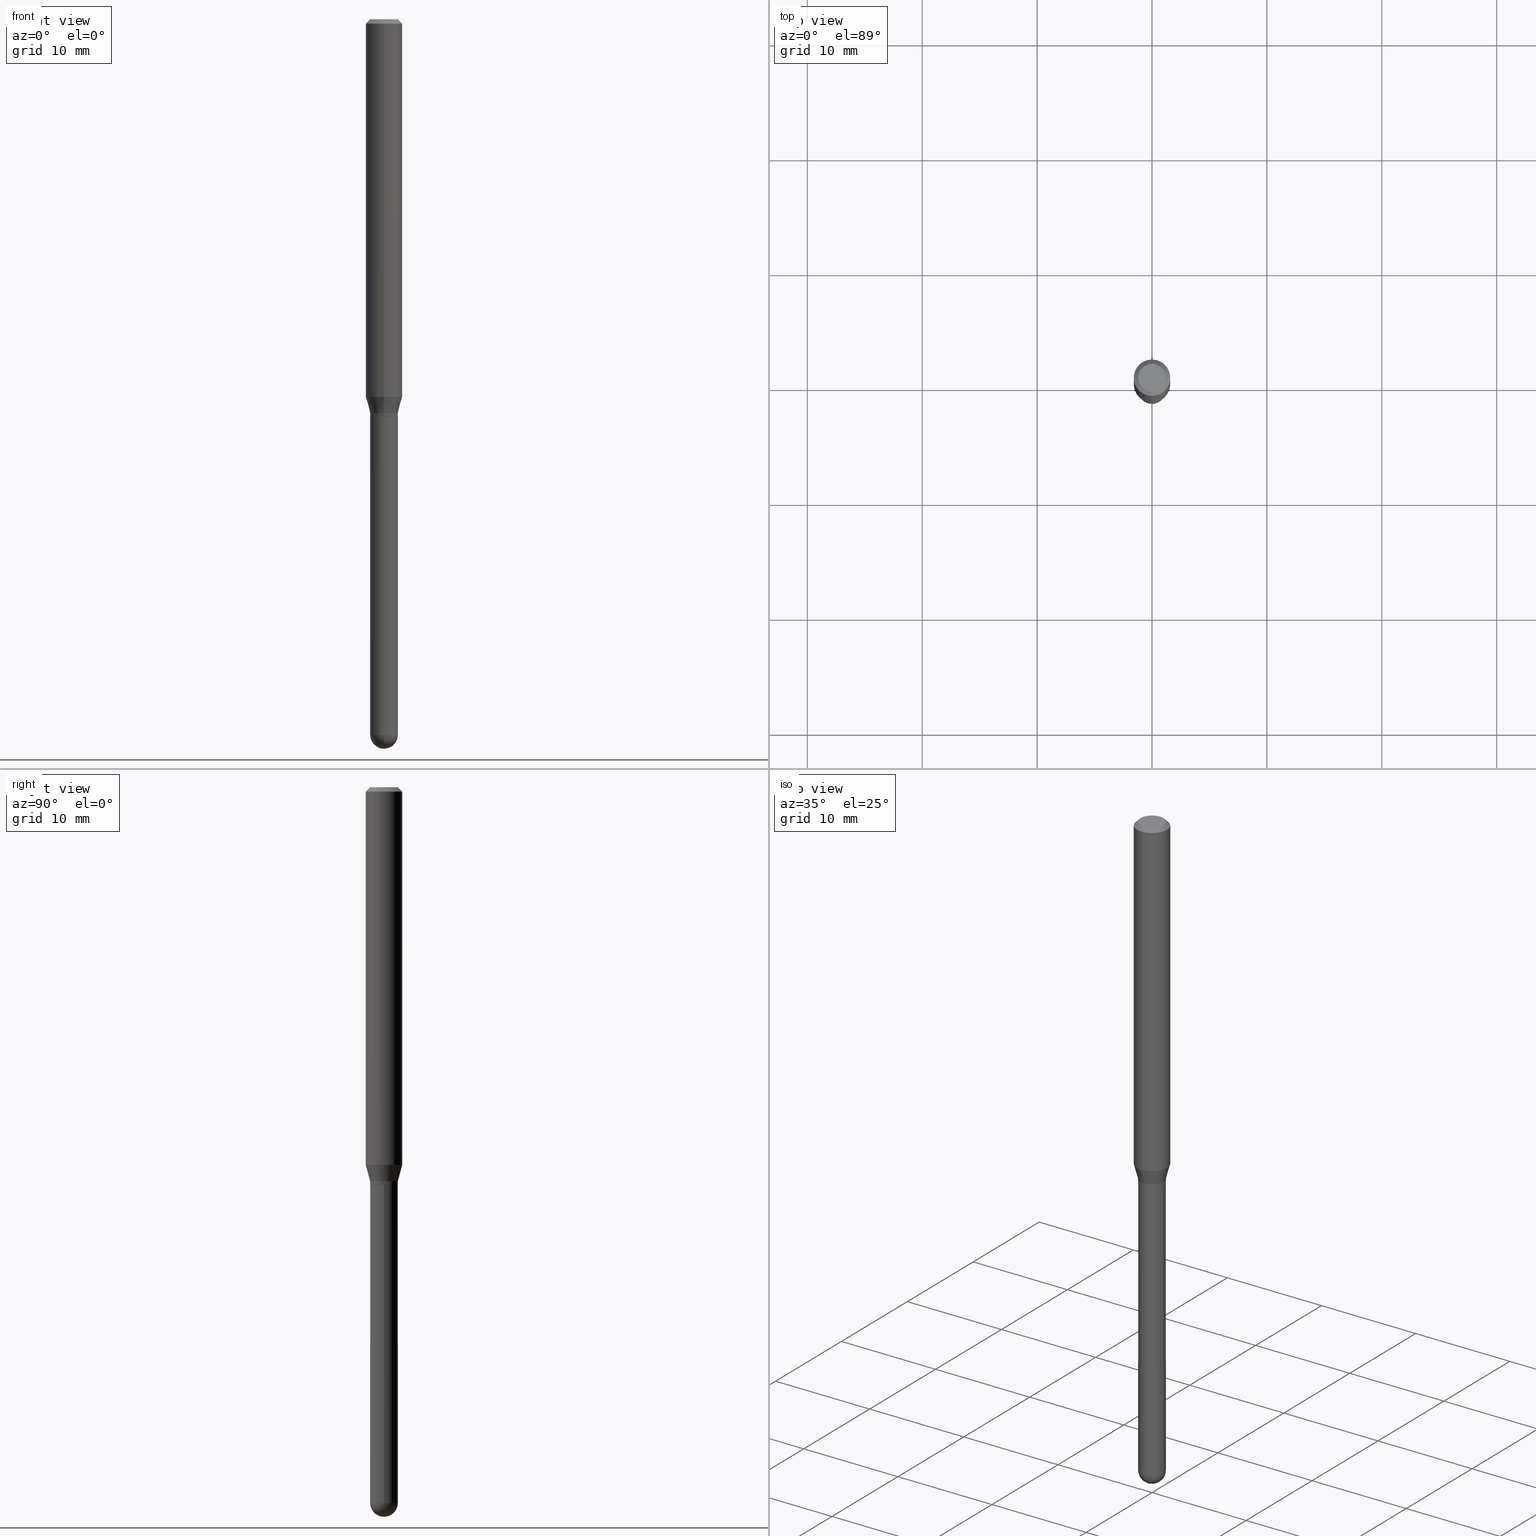
[diagram: canonical four-view strip — front | top / right | iso, engineering-drawing reading convention]
A machine part, canonical four-view strip (front | top / right | iso — engineering-drawing reading convention). The complete STEP part file that produces these views, byte-faithful:
ISO-10303-21;
HEADER;
FILE_DESCRIPTION (( 'STEP AP203' ),
    '1' );
FILE_NAME ('02795.STEP',
    '2024-03-07T21:36:20',
    ( '' ),
    ( '' ),
    'SwSTEP 2.0',
    'SolidWorks 2023',
    '' );
FILE_SCHEMA (( 'CONFIG_CONTROL_DESIGN' ));
ENDSEC;

DATA;
#1 = EDGE_LOOP ( 'NONE', ( #29, #168 ) ) ;
#2 = DIRECTION ( 'NONE',  ( -6.982962677686265922E-15, -1.000000000000000000, 3.491508113108487617E-15 ) ) ;
#3 = ORIENTED_EDGE ( 'NONE', *, *, #325, .T. ) ;
#4 = FACE_OUTER_BOUND ( 'NONE', #156, .T. ) ;
#5 = ORIENTED_EDGE ( 'NONE', *, *, #74, .F. ) ;
#6 = DIRECTION ( 'NONE',  ( -2.445468806185136597E-29, 3.491481338843145583E-15, 1.000000000000000000 ) ) ;
#7 = CARTESIAN_POINT ( 'NONE',  ( -0.04750000000000000749, 3.375077994860476415E-16, -2.336494167871080260E-30 ) ) ;
#8 = AXIS2_PLACEMENT_3D ( 'NONE', #56, #287, #360 ) ;
#9 = ORIENTED_EDGE ( 'NONE', *, *, #450, .T. ) ;
#10 = CARTESIAN_POINT ( 'NONE',  ( 3.668175164723444599E-31, -5.237262169662845786E-17, -0.01500000000000032904 ) ) ;
#11 = CARTESIAN_POINT ( 'NONE',  ( 3.339550858072802203E-16, 0.04699999999999524697, -1.360000000000000764 ) ) ;
#12 = CALENDAR_DATE ( 2024, 7, 3 ) ;
#13 = FACE_OUTER_BOUND ( 'NONE', #165, .T. ) ;
#14 = DIRECTION ( 'NONE',  ( 1.000000000000000000, -6.982962677686280910E-15, 0.000000000000000000 ) ) ;
#15 = APPROVAL_ROLE ( '' ) ;
#16 = CIRCLE ( 'NONE', #436, 0.04699999999999999317 ) ;
#17 = APPROVAL_PERSON_ORGANIZATION ( #322, #298, #15 ) ;
#18 = DIRECTION ( 'NONE',  ( 6.982962677686265922E-15, 1.000000000000000000, -5.751258934030062081E-15 ) ) ;
#19 = FACE_OUTER_BOUND ( 'NONE', #1, .T. ) ;
#20 = CALENDAR_DATE ( 2024, 7, 3 ) ;
#21 = APPLICATION_CONTEXT ( 'configuration controlled 3d designs of mechanical parts and assemblies' ) ;
#22 = DIRECTION ( 'NONE',  ( -1.000000000000000000, 6.982962677686265922E-15, -4.876176775795935793E-29 ) ) ;
#23 = COORDINATED_UNIVERSAL_TIME_OFFSET ( 5, 0, .BEHIND. ) ;
#24 = DIRECTION ( 'NONE',  ( -2.445468806185136597E-29, 3.491481338843145583E-15, 1.000000000000000000 ) ) ;
#25 = VECTOR ( 'NONE', #338, 39.37007874015748143 ) ;
#26 = VECTOR ( 'NONE', #166, 39.37007874015748143 ) ;
#27 = EDGE_CURVE ( 'NONE', #424, #31, #16, .T. ) ;
#28 = CARTESIAN_POINT ( 'NONE',  ( -4.364351673553912750E-16, -0.06250000000000005551, -0.01500000000000011047 ) ) ;
#29 = ORIENTED_EDGE ( 'NONE', *, *, #139, .T. ) ;
#30 = DIRECTION ( 'NONE',  ( 1.000000000000000000, -6.982962677686280910E-15, 0.000000000000000000 ) ) ;
#31 = VERTEX_POINT ( 'NONE', #163 ) ;
#32 = CARTESIAN_POINT ( 'NONE',  ( 3.375077994860819570E-16, 0.04749999999999549027, -1.350000000000000311 ) ) ;
#33 = VERTEX_POINT ( 'NONE', #119 ) ;
#34 = AXIS2_PLACEMENT_3D ( 'NONE', #405, #220, #416 ) ;
#35 = CARTESIAN_POINT ( 'NONE',  ( 3.301357648251027998E-29, -4.713535952696458717E-15, -1.350000000000000089 ) ) ;
#36 = ORIENTED_EDGE ( 'NONE', *, *, #352, .F. ) ;
#37 = VERTEX_POINT ( 'NONE', #274 ) ;
#38 = VERTEX_POINT ( 'NONE', #435 ) ;
#39 = EDGE_CURVE ( 'NONE', #31, #37, #48, .T. ) ;
#40 = CIRCLE ( 'NONE', #260, 0.04749999999999999362 ) ;
#41 = CONICAL_SURFACE ( 'NONE', #437, 0.04750000000000020178, 0.2617993877991497964 ) ;
#42 = ORIENTED_EDGE ( 'NONE', *, *, #291, .F. ) ;
#43 = CC_DESIGN_PERSON_AND_ORGANIZATION_ASSIGNMENT ( #410, #370, ( #281 ) ) ;
#44 = CARTESIAN_POINT ( 'NONE',  ( 0.04750000000000000749, -3.316907271900977082E-16, 2.316183968503069432E-30 ) ) ;
#45 = ADVANCED_FACE ( 'NONE', ( #237 ), #393, .T. ) ;
#46 = ORIENTED_EDGE ( 'NONE', *, *, #160, .F. ) ;
#47 = CARTESIAN_POINT ( 'NONE',  ( 0.000000000000000000, 0.000000000000000000, 0.000000000000000000 ) ) ;
#48 = LINE ( 'NONE', #87, #222 ) ;
#49 = PERSON_AND_ORGANIZATION_ROLE ( 'classification_officer' ) ;
#50 = AXIS2_PLACEMENT_3D ( 'NONE', #101, #62, #67 ) ;
#51 = ORIENTED_EDGE ( 'NONE', *, *, #413, .T. ) ;
#52 = CIRCLE ( 'NONE', #488, 0.04750000000000000749 ) ;
#53 = APPROVAL_STATUS ( 'not_yet_approved' ) ;
#54 = VECTOR ( 'NONE', #407, 39.37007874015748143 ) ;
#55 = FACE_OUTER_BOUND ( 'NONE', #507, .T. ) ;
#56 = CARTESIAN_POINT ( 'NONE',  ( 3.164459487392930643E-29, -4.518078667599064450E-15, -1.294019237886467666 ) ) ;
#57 = APPROVAL_DATE_TIME ( #403, #335 ) ;
#58 = DIRECTION ( 'NONE',  ( -2.445450109815576098E-29, 3.491508113108487617E-15, 1.000000000000000000 ) ) ;
#59 = DIRECTION ( 'NONE',  ( 1.000000000000000000, -6.982962677686266711E-15, 4.876176775795934672E-29 ) ) ;
#60 = COORDINATED_UNIVERSAL_TIME_OFFSET ( 5, 0, .BEHIND. ) ;
#61 = DESIGN_CONTEXT ( 'detailed design', #394, 'design' ) ;
#62 = DIRECTION ( 'NONE',  ( -2.445468806185136597E-29, 3.491481338843145583E-15, 1.000000000000000000 ) ) ;
#63 = AXIS2_PLACEMENT_3D ( 'NONE', #458, #104, #184 ) ;
#64 = CIRCLE ( 'NONE', #490, 0.04749999999999999362 ) ;
#65 = DATE_AND_TIME ( #453, #86 ) ;
#66 = ADVANCED_FACE ( 'NONE', ( #314 ), #333, .T. ) ;
#67 = DIRECTION ( 'NONE',  ( 1.000000000000000000, -6.982962677686280910E-15, 0.000000000000000000 ) ) ;
#68 = APPROVAL_STATUS ( 'not_yet_approved' ) ;
#69 = PERSON ( 'UNSPECIFIED', 'UNSPECIFIED', 'UNSPECIFIED', ('UNSPECIFIED'), ('UNSPECIFIED'), ('UNSPECIFIED') ) ;
#70 = CYLINDRICAL_SURFACE ( 'NONE', #332, 0.06250000000000000000 ) ;
#71 = DIRECTION ( 'NONE',  ( -6.982962677686265922E-15, -1.000000000000000000, 4.370956789862821150E-15 ) ) ;
#72 = APPROVAL_PERSON_ORGANIZATION ( #255, #447, #293 ) ;
#73 = LINE ( 'NONE', #192, #25 ) ;
#74 = EDGE_CURVE ( 'NONE', #347, #78, #356, .T. ) ;
#75 = EDGE_LOOP ( 'NONE', ( #443, #358, #208, #261 ) ) ;
#76 = CARTESIAN_POINT ( 'NONE',  ( 0.000000000000000000, 0.000000000000000000, 0.000000000000000000 ) ) ;
#77 = CYLINDRICAL_SURFACE ( 'NONE', #207, 0.06250000000000000000 ) ;
#78 = VERTEX_POINT ( 'NONE', #289 ) ;
#79 = CIRCLE ( 'NONE', #302, 0.04750000000000000749 ) ;
#80 = ORIENTED_EDGE ( 'NONE', *, *, #346, .F. ) ;
#81 = ADVANCED_FACE ( 'NONE', ( #327 ), #315, .T. ) ;
#82 = ORIENTED_EDGE ( 'NONE', *, *, #383, .F. ) ;
#83 = EDGE_CURVE ( 'NONE', #389, #429, #377, .T. ) ;
#84 = LINE ( 'NONE', #224, #253 ) ;
#85 = VECTOR ( 'NONE', #113, 39.37007874015748143 ) ;
#86 = LOCAL_TIME ( 16, 36, 20.00000000000000000, #23 ) ;
#87 = CARTESIAN_POINT ( 'NONE',  ( -3.281992458512212238E-16, -0.04700000000000473938, -1.360000000000000320 ) ) ;
#88 = SPHERICAL_SURFACE ( 'NONE', #304, 0.04749999999999971606 ) ;
#89 = VERTEX_POINT ( 'NONE', #448 ) ;
#90 = DIRECTION ( 'NONE',  ( 6.982962677686265922E-15, 1.000000000000000000, -3.483106191921935554E-15 ) ) ;
#91 = ORIENTED_EDGE ( 'NONE', *, *, #450, .F. ) ;
#92 = FACE_OUTER_BOUND ( 'NONE', #471, .T. ) ;
#93 = EDGE_CURVE ( 'NONE', #31, #424, #504, .T. ) ;
#94 = CIRCLE ( 'NONE', #367, 0.04750000000000020178 ) ;
#95 = PLANE ( 'NONE',  #158 ) ;
#96 = AXIS2_PLACEMENT_3D ( 'NONE', #276, #395, #359 ) ;
#97 = CARTESIAN_POINT ( 'NONE',  ( 8.024638792496662421E-45, -1.145723289806970711E-30, -3.281456759345559287E-16 ) ) ;
#98 = DIRECTION ( 'NONE',  ( -2.445450109815576098E-29, 3.491508113108487617E-15, 1.000000000000000000 ) ) ;
#99 = ADVANCED_FACE ( 'NONE', ( #248 ), #499, .T. ) ;
#100 = FACE_OUTER_BOUND ( 'NONE', #151, .T. ) ;
#101 = CARTESIAN_POINT ( 'NONE',  ( 5.997512247169047773E-29, -8.562857983512815004E-15, -2.452500000000000124 ) ) ;
#102 = DIRECTION ( 'NONE',  ( 0.000000000000000000, 0.000000000000000000, 1.000000000000000000 ) ) ;
#103 = ADVANCED_FACE ( 'NONE', ( #212 ), #292, .T. ) ;
#104 = DIRECTION ( 'NONE',  ( -1.000000000000000000, 6.982962677686265922E-15, -4.883557194083113462E-29 ) ) ;
#105 = DATE_TIME_ROLE ( 'creation_date' ) ;
#106 = FACE_OUTER_BOUND ( 'NONE', #240, .T. ) ;
#107 = CC_DESIGN_PERSON_AND_ORGANIZATION_ASSIGNMENT ( #127, #49, ( #295 ) ) ;
#108 = PLANE ( 'NONE',  #270 ) ;
#109 = CARTESIAN_POINT ( 'NONE',  ( 3.668175164723444599E-31, -5.237262169662845786E-17, -0.01500000000000032904 ) ) ;
#110 = ORIENTED_EDGE ( 'NONE', *, *, #475, .F. ) ;
#111 = CIRCLE ( 'NONE', #50, 0.04750000000000000749 ) ;
#112 = AXIS2_PLACEMENT_3D ( 'NONE', #169, #323, #241 ) ;
#113 = DIRECTION ( 'NONE',  ( -2.445468806185136877E-29, 3.491481338843145188E-15, 1.000000000000000000 ) ) ;
#114 = ORIENTED_EDGE ( 'NONE', *, *, #291, .T. ) ;
#115 = DIRECTION ( 'NONE',  ( -6.982962677686265922E-15, -1.000000000000000000, 3.483106191921935554E-15 ) ) ;
#116 = VERTEX_POINT ( 'NONE', #364 ) ;
#117 = ORIENTED_EDGE ( 'NONE', *, *, #183, .F. ) ;
#118 = ORIENTED_EDGE ( 'NONE', *, *, #418, .F. ) ;
#119 = CARTESIAN_POINT ( 'NONE',  ( 0.04749999999999999362, -5.080105348016776545E-15, -1.360000000000000320 ) ) ;
#120 = DIRECTION ( 'NONE',  ( -2.445450109815576098E-29, 3.491508113108487617E-15, 1.000000000000000000 ) ) ;
#121 = EDGE_LOOP ( 'NONE', ( #82, #91, #427, #466 ) ) ;
#122 = EDGE_CURVE ( 'NONE', #130, #345, #286, .T. ) ;
#123 = PLANE ( 'NONE',  #112 ) ;
#124 = VECTOR ( 'NONE', #311, 39.37007874015748143 ) ;
#125 = VECTOR ( 'NONE', #58, 39.37007874015748143 ) ;
#126 = DIRECTION ( 'NONE',  ( -2.445450109815576098E-29, 3.491508113108487617E-15, 1.000000000000000000 ) ) ;
#127 = PERSON_AND_ORGANIZATION ( #69, #195 ) ;
#128 = CARTESIAN_POINT ( 'NONE',  ( 0.000000000000000000, 0.000000000000000000, 0.000000000000000000 ) ) ;
#129 =( NAMED_UNIT ( * ) SI_UNIT ( $, .STERADIAN. ) SOLID_ANGLE_UNIT ( ) );
#130 = VERTEX_POINT ( 'NONE', #297 ) ;
#131 = DATE_AND_TIME ( #12, #236 ) ;
#132 = AXIS2_PLACEMENT_3D ( 'NONE', #172, #493, #321 ) ;
#133 = DIRECTION ( 'NONE',  ( -2.445468806185136597E-29, 3.491481338843145583E-15, 1.000000000000000000 ) ) ;
#134 = LOCAL_TIME ( 16, 36, 20.00000000000000000, #146 ) ;
#135 = DIRECTION ( 'NONE',  ( 1.000000000000000000, -6.982962677686261977E-15, 0.000000000000000000 ) ) ;
#136 = PRODUCT_RELATED_PRODUCT_CATEGORY ( 'detail', '', ( #363 ) ) ;
#137 = DIRECTION ( 'NONE',  ( -2.445468806185136877E-29, 3.491481338843145188E-15, 1.000000000000000000 ) ) ;
#138 = MECHANICAL_CONTEXT ( 'NONE', #21, 'mechanical' ) ;
#139 = EDGE_CURVE ( 'NONE', #33, #78, #40, .T. ) ;
#140 = CARTESIAN_POINT ( 'NONE',  ( 3.325812149349185040E-29, -4.748451033827545116E-15, -1.360000000000000542 ) ) ;
#141 = UNCERTAINTY_MEASURE_WITH_UNIT (LENGTH_MEASURE( 1.000000000000000082E-05 ), #484, 'distance_accuracy_value', 'NONE');
#142 = CARTESIAN_POINT ( 'NONE',  ( 0.000000000000000000, 0.000000000000000000, 0.000000000000000000 ) ) ;
#143 = ADVANCED_FACE ( 'NONE', ( #19 ), #95, .F. ) ;
#144 = DIRECTION ( 'NONE',  ( -6.982962677686266711E-15, -1.000000000000000000, 5.812442539711199378E-15 ) ) ;
#145 = LOCAL_TIME ( 16, 36, 20.00000000000000000, #290 ) ;
#146 = COORDINATED_UNIVERSAL_TIME_OFFSET ( 5, 0, .BEHIND. ) ;
#147 = DIRECTION ( 'NONE',  ( 1.000000000000000000, -6.982962677686265922E-15, 4.883557194083112340E-29 ) ) ;
#148 = EDGE_CURVE ( 'NONE', #424, #191, #246, .T. ) ;
#149 = DIRECTION ( 'NONE',  ( 1.000000000000000000, -6.982962677686280910E-15, 0.000000000000000000 ) ) ;
#150 = DIRECTION ( 'NONE',  ( -6.982962677686265922E-15, -1.000000000000000000, 5.751258934030003706E-15 ) ) ;
#151 = EDGE_LOOP ( 'NONE', ( #501, #432, #42, #36 ) ) ;
#152 = CLOSED_SHELL ( 'NONE', ( #45, #81, #457, #229, #477, #66, #368, #398, #376, #481, #201, #372 ) ) ;
#153 = DIRECTION ( 'NONE',  ( -2.445450109815576098E-29, 3.491508113108487617E-15, 1.000000000000000000 ) ) ;
#154 = ORIENTED_EDGE ( 'NONE', *, *, #300, .T. ) ;
#155 = EDGE_CURVE ( 'NONE', #339, #116, #511, .T. ) ;
#156 = EDGE_LOOP ( 'NONE', ( #303, #379, #51, #348 ) ) ;
#157 = ORIENTED_EDGE ( 'NONE', *, *, #275, .F. ) ;
#158 = AXIS2_PLACEMENT_3D ( 'NONE', #210, #216, #22 ) ;
#159 = AXIS2_PLACEMENT_3D ( 'NONE', #426, #263, #30 ) ;
#160 = EDGE_CURVE ( 'NONE', #312, #197, #386, .T. ) ;
#161 = ORIENTED_EDGE ( 'NONE', *, *, #183, .T. ) ;
#162 = DIRECTION ( 'NONE',  ( 2.445450109815575818E-29, -3.491508113108487617E-15, -1.000000000000000000 ) ) ;
#163 = CARTESIAN_POINT ( 'NONE',  ( -3.281992458512212238E-16, -0.04700000000000473938, -1.360000000000000320 ) ) ;
#164 = DIRECTION ( 'NONE',  ( -2.445450109815576098E-29, 3.491508113108487617E-15, 1.000000000000000000 ) ) ;
#165 = EDGE_LOOP ( 'NONE', ( #5, #307, #387, #154, #118 ) ) ;
#166 = DIRECTION ( 'NONE',  ( -1.807323732225326984E-15, -0.2588190451025177419, 0.9659258262890690894 ) ) ;
#167 = CIRCLE ( 'NONE', #420, 0.04749999999999964667 ) ;
#168 = ORIENTED_EDGE ( 'NONE', *, *, #418, .T. ) ;
#169 = CARTESIAN_POINT ( 'NONE',  ( 3.325812149349184480E-29, -4.748451033827544327E-15, -1.360000000000000320 ) ) ;
#170 = ORIENTED_EDGE ( 'NONE', *, *, #300, .F. ) ;
#171 = CYLINDRICAL_SURFACE ( 'NONE', #176, 0.04750000000000000749 ) ;
#172 = CARTESIAN_POINT ( 'NONE',  ( 8.024638792496662421E-45, -1.145723289806970711E-30, -3.281456759345559287E-16 ) ) ;
#173 = DIRECTION ( 'NONE',  ( -1.000000000000000000, 7.105427357601001070E-15, -4.926315508542082329E-29 ) ) ;
#174 = VECTOR ( 'NONE', #273, 39.37007874015748143 ) ;
#175 = CARTESIAN_POINT ( 'NONE',  ( 5.993450207295445537E-29, -8.568675055808764986E-15, -2.452500000000000124 ) ) ;
#176 = AXIS2_PLACEMENT_3D ( 'NONE', #47, #288, #438 ) ;
#177 = DATE_AND_TIME ( #365, #145 ) ;
#178 = EDGE_CURVE ( 'NONE', #345, #347, #52, .T. ) ;
#179 = CARTESIAN_POINT ( 'NONE',  ( 3.840629472727447874E-16, 0.04749999999999999362, -4.939923113072091241E-16 ) ) ;
#180 = CARTESIAN_POINT ( 'NONE',  ( -3.316907271900660552E-16, -0.04750000000000491329, -1.349999999999999867 ) ) ;
#181 = CC_DESIGN_PERSON_AND_ORGANIZATION_ASSIGNMENT ( #213, #251, ( #470 ) ) ;
#182 = APPROVAL_STATUS ( 'not_yet_approved' ) ;
#183 = EDGE_CURVE ( 'NONE', #37, #191, #167, .T. ) ;
#184 = DIRECTION ( 'NONE',  ( 6.982962677686265922E-15, 1.000000000000000000, -5.751258934030062081E-15 ) ) ;
#185 = CIRCLE ( 'NONE', #309, 0.04750000000000020178 ) ;
#186 = LOCAL_TIME ( 16, 36, 20.00000000000000000, #373 ) ;
#187 = CARTESIAN_POINT ( 'NONE',  ( -3.375077994859866034E-16, -0.04750000000000842437, -2.452499999999999680 ) ) ;
#188 = PRODUCT_DEFINITION_SHAPE ( 'NONE', 'NONE',  #281 ) ;
#189 = ORIENTED_EDGE ( 'NONE', *, *, #160, .T. ) ;
#190 = DIRECTION ( 'NONE',  ( -2.445450109815576098E-29, 3.491508113108487617E-15, 1.000000000000000000 ) ) ;
#191 = VERTEX_POINT ( 'NONE', #256 ) ;
#192 = CARTESIAN_POINT ( 'NONE',  ( 3.375077994860469513E-16, 0.04749999999999991729, -1.658466353726528749E-16 ) ) ;
#193 = ORIENTED_EDGE ( 'NONE', *, *, #178, .F. ) ;
#194 = AXIS2_PLACEMENT_3D ( 'NONE', #375, #98, #454 ) ;
#195 = ORGANIZATION ( 'UNSPECIFIED', 'UNSPECIFIED', '' ) ;
#196 = CARTESIAN_POINT ( 'NONE',  ( 3.668175164723444599E-31, -5.237262169662845786E-17, -0.01500000000000032904 ) ) ;
#197 = VERTEX_POINT ( 'NONE', #179 ) ;
#198 = EDGE_LOOP ( 'NONE', ( #157, #503, #310, #397 ) ) ;
#199 = EDGE_CURVE ( 'NONE', #347, #396, #111, .T. ) ;
#200 = VERTEX_POINT ( 'NONE', #180 ) ;
#201 = ADVANCED_FACE ( 'NONE', ( #371 ), #428, .T. ) ;
#202 = EDGE_LOOP ( 'NONE', ( #46, #308, #441, #80 ) ) ;
#203 = FACE_OUTER_BOUND ( 'NONE', #280, .T. ) ;
#204 = DIRECTION ( 'NONE',  ( -2.445450109815576098E-29, 3.491508113108487617E-15, 1.000000000000000000 ) ) ;
#205 = DIRECTION ( 'NONE',  ( -6.982962677686265922E-15, -1.000000000000000000, 5.751258934030003706E-15 ) ) ;
#206 = DATE_TIME_ROLE ( 'classification_date' ) ;
#207 = AXIS2_PLACEMENT_3D ( 'NONE', #228, #502, #392 ) ;
#208 = ORIENTED_EDGE ( 'NONE', *, *, #489, .T. ) ;
#209 = CARTESIAN_POINT ( 'NONE',  ( -4.364351673553916201E-16, -0.06250000000000000000, 2.182192570692804761E-16 ) ) ;
#210 = CARTESIAN_POINT ( 'NONE',  ( 3.316907271901308404E-16, 0.04749999999999524741, -1.360000000000000542 ) ) ;
#211 = CARTESIAN_POINT ( 'NONE',  ( 3.301357648251027998E-29, -4.713535952696458717E-15, -1.350000000000000089 ) ) ;
#212 = FACE_OUTER_BOUND ( 'NONE', #320, .T. ) ;
#213 = PERSON_AND_ORGANIZATION ( #69, #195 ) ;
#214 = LINE ( 'NONE', #355, #54 ) ;
#215 = VECTOR ( 'NONE', #137, 39.37007874015748143 ) ;
#216 = DIRECTION ( 'NONE',  ( 2.438088387897960049E-29, -3.491481338843145188E-15, -1.000000000000000000 ) ) ;
#217 = APPROVAL_DATE_TIME ( #177, #298 ) ;
#218 = PERSON_AND_ORGANIZATION ( #69, #195 ) ;
#219 = DIRECTION ( 'NONE',  ( -2.445450109815576098E-29, 3.491508113108487617E-15, 1.000000000000000000 ) ) ;
#220 = DIRECTION ( 'NONE',  ( -2.445450109815576098E-29, 3.491508113108487617E-15, 1.000000000000000000 ) ) ;
#221 = CARTESIAN_POINT ( 'NONE',  ( 3.301357648251027998E-29, -4.713535952696458717E-15, -1.350000000000000089 ) ) ;
#222 = VECTOR ( 'NONE', #482, 39.37007874015748143 ) ;
#223 = CONICAL_SURFACE ( 'NONE', #480, 0.06250000000000000000, 0.7853981633974483900 ) ;
#224 = CARTESIAN_POINT ( 'NONE',  ( 4.364351673553919652E-16, 0.06249999999999995143, -0.01500000000000054588 ) ) ;
#225 = ORIENTED_EDGE ( 'NONE', *, *, #139, .F. ) ;
#226 = DIRECTION ( 'NONE',  ( 4.937700262164548042E-15, 0.7071067811865451302, -0.7071067811865499042 ) ) ;
#227 = ORIENTED_EDGE ( 'NONE', *, *, #27, .T. ) ;
#228 = CARTESIAN_POINT ( 'NONE',  ( 0.000000000000000000, 0.000000000000000000, 0.000000000000000000 ) ) ;
#229 = ADVANCED_FACE ( 'NONE', ( #106 ), #70, .T. ) ;
#230 = EDGE_LOOP ( 'NONE', ( #161, #381, #337, #439 ) ) ;
#231 = AXIS2_PLACEMENT_3D ( 'NONE', #478, #126, #205 ) ;
#232 = ORIENTED_EDGE ( 'NONE', *, *, #199, .F. ) ;
#233 = EDGE_LOOP ( 'NONE', ( #468, #227, #278, #110 ) ) ;
#234 = AXIS2_PLACEMENT_3D ( 'NONE', #330, #495, #144 ) ;
#235 = LINE ( 'NONE', #385, #124 ) ;
#236 = LOCAL_TIME ( 16, 36, 20.00000000000000000, #60 ) ;
#237 = FACE_OUTER_BOUND ( 'NONE', #230, .T. ) ;
#238 = CC_DESIGN_DATE_AND_TIME_ASSIGNMENT ( #65, #105, ( #281 ) ) ;
#239 = CARTESIAN_POINT ( 'NONE',  ( 5.993450207295445537E-29, -8.568675055808764986E-15, -2.452500000000000124 ) ) ;
#240 = EDGE_LOOP ( 'NONE', ( #306, #272, #510, #351 ) ) ;
#241 = DIRECTION ( 'NONE',  ( -6.982962677686265922E-15, -1.000000000000000000, 3.491508113108487617E-15 ) ) ;
#242 = EDGE_LOOP ( 'NONE', ( #384, #271, #117, #268 ) ) ;
#243 = LINE ( 'NONE', #209, #125 ) ;
#244 = CIRCLE ( 'NONE', #445, 0.06250000000000000000 ) ;
#245 = CC_DESIGN_SECURITY_CLASSIFICATION ( #295, ( #470 ) ) ;
#246 = LINE ( 'NONE', #11, #341 ) ;
#247 = DIRECTION ( 'NONE',  ( -6.982962677686266711E-15, -1.000000000000000000, 3.491508113108487617E-15 ) ) ;
#248 = FACE_OUTER_BOUND ( 'NONE', #264, .T. ) ;
#249 = CARTESIAN_POINT ( 'NONE',  ( 5.993450207295445537E-29, -8.568675055808764986E-15, -2.452500000000000124 ) ) ;
#250 = CARTESIAN_POINT ( 'NONE',  ( 0.000000000000000000, 0.000000000000000000, 0.000000000000000000 ) ) ;
#251 = PERSON_AND_ORGANIZATION_ROLE ( 'design_supplier' ) ;
#252 = EDGE_CURVE ( 'NONE', #116, #339, #244, .T. ) ;
#253 = VECTOR ( 'NONE', #226, 39.37007874015748143 ) ;
#254 = DIRECTION ( 'NONE',  ( -2.445450109815576098E-29, 3.491508113108487617E-15, 1.000000000000000000 ) ) ;
#255 = PERSON_AND_ORGANIZATION ( #69, #195 ) ;
#256 = CARTESIAN_POINT ( 'NONE',  ( 3.375077994860790481E-16, 0.04749999999999501149, -1.359500000000000597 ) ) ;
#257 = DIMENSIONAL_EXPONENTS ( 1.000000000000000000, 0.000000000000000000, 0.000000000000000000, 0.000000000000000000, 0.000000000000000000, 0.000000000000000000, 0.000000000000000000 ) ;
#258 = CARTESIAN_POINT ( 'NONE',  ( -4.287811248607203282E-16, -0.06250000000000005551, -0.01500000000000011047 ) ) ;
#259 = DIRECTION ( 'NONE',  ( -6.982962677686265922E-15, -1.000000000000000000, 3.491508113108487617E-15 ) ) ;
#260 = AXIS2_PLACEMENT_3D ( 'NONE', #294, #133, #408 ) ;
#261 = ORIENTED_EDGE ( 'NONE', *, *, #328, .F. ) ;
#262 = CONICAL_SURFACE ( 'NONE', #512, 0.06250000000000000000, 0.7853981633974483900 ) ;
#263 = DIRECTION ( 'NONE',  ( -2.445468806185136597E-29, 3.491481338843145583E-15, 1.000000000000000000 ) ) ;
#264 = EDGE_LOOP ( 'NONE', ( #390, #267, #225, #170, #114 ) ) ;
#265 = EDGE_CURVE ( 'NONE', #38, #200, #185, .T. ) ;
#266 = CARTESIAN_POINT ( 'NONE',  ( 3.316907271901566262E-16, 0.04749999999999129918, -2.452500000000000568 ) ) ;
#267 = ORIENTED_EDGE ( 'NONE', *, *, #74, .T. ) ;
#268 = ORIENTED_EDGE ( 'NONE', *, *, #39, .F. ) ;
#269 = AXIS2_PLACEMENT_3D ( 'NONE', #175, #147, #369 ) ;
#270 = AXIS2_PLACEMENT_3D ( 'NONE', #461, #162, #473 ) ;
#271 = ORIENTED_EDGE ( 'NONE', *, *, #148, .T. ) ;
#272 = ORIENTED_EDGE ( 'NONE', *, *, #283, .T. ) ;
#273 = DIRECTION ( 'NONE',  ( 1.839019923739597160E-15, 0.2588190451025245142, 0.9659258262890673130 ) ) ;
#274 = CARTESIAN_POINT ( 'NONE',  ( -3.316907271900611741E-16, -0.04750000000000428185, -1.359500000000000153 ) ) ;
#275 = EDGE_CURVE ( 'NONE', #38, #116, #380, .T. ) ;
#276 = CARTESIAN_POINT ( 'NONE',  ( 3.324589424294276487E-29, -4.746705279770989968E-15, -1.359500000000000375 ) ) ;
#277 = AXIS2_PLACEMENT_3D ( 'NONE', #97, #476, #247 ) ;
#278 = ORIENTED_EDGE ( 'NONE', *, *, #39, .T. ) ;
#279 = DIRECTION ( 'NONE',  ( -7.105427357601001070E-15, -1.000000000000000000, 0.000000000000000000 ) ) ;
#280 = EDGE_LOOP ( 'NONE', ( #9, #189 ) ) ;
#281 = PRODUCT_DEFINITION ( 'UNKNOWN', '', #470, #61 ) ;
#282 = CC_DESIGN_DATE_AND_TIME_ASSIGNMENT ( #131, #206, ( #295 ) ) ;
#283 = EDGE_CURVE ( 'NONE', #116, #429, #235, .T. ) ;
#284 = ORIENTED_EDGE ( 'NONE', *, *, #425, .F. ) ;
#285 =( NAMED_UNIT ( * ) PLANE_ANGLE_UNIT ( ) SI_UNIT ( $, .RADIAN. ) );
#286 = CIRCLE ( 'NONE', #269, 0.04749999999999971606 ) ;
#287 = DIRECTION ( 'NONE',  ( -2.445450109815576098E-29, 3.491508113108487617E-15, 1.000000000000000000 ) ) ;
#288 = DIRECTION ( 'NONE',  ( -2.445468806185136597E-29, 3.491481338843145583E-15, 1.000000000000000000 ) ) ;
#289 = CARTESIAN_POINT ( 'NONE',  ( -0.04749999999999999362, -6.318128502683699525E-15, -1.360000000000000320 ) ) ;
#290 = COORDINATED_UNIVERSAL_TIME_OFFSET ( 5, 0, .BEHIND. ) ;
#291 = EDGE_CURVE ( 'NONE', #89, #345, #79, .T. ) ;
#292 = SPHERICAL_SURFACE ( 'NONE', #63, 0.04749999999999971606 ) ;
#293 = APPROVAL_ROLE ( '' ) ;
#294 = CARTESIAN_POINT ( 'NONE',  ( 3.325837576411786624E-29, -4.748414620826679034E-15, -1.360000000000000320 ) ) ;
#295 = SECURITY_CLASSIFICATION ( '', '', #406 ) ;
#296 = PERSON_AND_ORGANIZATION ( #69, #195 ) ;
#297 = CARTESIAN_POINT ( 'NONE',  ( 6.111640995526039814E-29, -8.731611883255838356E-15, -2.500000000000000000 ) ) ;
#298 = APPROVAL ( #53, 'UNSPECIFIED' ) ;
#299 = FACE_OUTER_BOUND ( 'NONE', #121, .T. ) ;
#300 = EDGE_CURVE ( 'NONE', #89, #33, #460, .T. ) ;
#301 = LINE ( 'NONE', #258, #456 ) ;
#302 = AXIS2_PLACEMENT_3D ( 'NONE', #422, #467, #149 ) ;
#303 = ORIENTED_EDGE ( 'NONE', *, *, #316, .F. ) ;
#304 = AXIS2_PLACEMENT_3D ( 'NONE', #249, #362, #18 ) ;
#305 = CARTESIAN_POINT ( 'NONE',  ( -4.364351673553597698E-16, -0.06250000000000448253, -1.294019237886467444 ) ) ;
#306 = ORIENTED_EDGE ( 'NONE', *, *, #155, .T. ) ;
#307 = ORIENTED_EDGE ( 'NONE', *, *, #199, .T. ) ;
#308 = ORIENTED_EDGE ( 'NONE', *, *, #383, .T. ) ;
#309 = AXIS2_PLACEMENT_3D ( 'NONE', #221, #506, #344 ) ;
#310 = ORIENTED_EDGE ( 'NONE', *, *, #425, .T. ) ;
#311 = DIRECTION ( 'NONE',  ( -2.445450109815576098E-29, 3.491508113108487617E-15, 1.000000000000000000 ) ) ;
#312 = VERTEX_POINT ( 'NONE', #340 ) ;
#313 = CARTESIAN_POINT ( 'NONE',  ( 4.440892098500944664E-16, 0.06249999999999995143, -0.01500000000000054588 ) ) ;
#314 = FACE_OUTER_BOUND ( 'NONE', #198, .T. ) ;
#315 = CONICAL_SURFACE ( 'NONE', #463, 0.04699999999999999317, 0.7853981633969275844 ) ;
#316 = EDGE_CURVE ( 'NONE', #191, #38, #73, .T. ) ;
#317 = FACE_OUTER_BOUND ( 'NONE', #202, .T. ) ;
#318 = DIRECTION ( 'NONE',  ( -2.445450109815576098E-29, 3.491508113108487617E-15, 1.000000000000000000 ) ) ;
#319 = DIRECTION ( 'NONE',  ( 2.445450109815576098E-29, -3.491508113108487617E-15, -1.000000000000000000 ) ) ;
#320 = EDGE_LOOP ( 'NONE', ( #462, #388, #232, #193 ) ) ;
#321 = DIRECTION ( 'NONE',  ( -6.982962677686266711E-15, -1.000000000000000000, 3.491508113108487617E-15 ) ) ;
#322 = PERSON_AND_ORGANIZATION ( #69, #195 ) ;
#323 = DIRECTION ( 'NONE',  ( -2.445450109815575818E-29, 3.491508113108487617E-15, 1.000000000000000000 ) ) ;
#324 = DIRECTION ( 'NONE',  ( -2.445468806185136597E-29, 3.491481338843145583E-15, 1.000000000000000000 ) ) ;
#325 = EDGE_CURVE ( 'NONE', #200, #38, #94, .T. ) ;
#326 = DIRECTION ( 'NONE',  ( 1.000000000000000000, 0.000000000000000000, 0.000000000000000000 ) ) ;
#327 = FACE_OUTER_BOUND ( 'NONE', #242, .T. ) ;
#328 = EDGE_CURVE ( 'NONE', #429, #389, #411, .T. ) ;
#329 = PERSON_AND_ORGANIZATION_ROLE ( 'design_owner' ) ;
#330 = CARTESIAN_POINT ( 'NONE',  ( 3.325812149349185040E-29, -4.748451033827545116E-15, -1.360000000000000542 ) ) ;
#331 = APPLICATION_PROTOCOL_DEFINITION ( 'international standard', 'config_control_design', 1994, #21 ) ;
#332 = AXIS2_PLACEMENT_3D ( 'NONE', #465, #120, #259 ) ;
#333 = CONICAL_SURFACE ( 'NONE', #231, 0.04750000000000020178, 0.2617993877991497964 ) ;
#334 = DIRECTION ( 'NONE',  ( -6.982962677686266711E-15, -1.000000000000000000, 5.812442539711199378E-15 ) ) ;
#335 = APPROVAL ( #68, 'UNSPECIFIED' ) ;
#336 = CARTESIAN_POINT ( 'NONE',  ( -0.04750000000000000749, -6.318128502683699525E-15, -2.452500000000000124 ) ) ;
#337 = ORIENTED_EDGE ( 'NONE', *, *, #325, .F. ) ;
#338 = DIRECTION ( 'NONE',  ( -2.445450109815576098E-29, 3.491508113108487617E-15, 1.000000000000000000 ) ) ;
#339 = VERTEX_POINT ( 'NONE', #305 ) ;
#340 = CARTESIAN_POINT ( 'NONE',  ( -3.773273898774340269E-16, -0.04749999999999999362, -1.622990405619027827E-16 ) ) ;
#341 = VECTOR ( 'NONE', #412, 39.37007874015748143 ) ;
#342 = ORIENTED_EDGE ( 'NONE', *, *, #27, .F. ) ;
#343 = AXIS2_PLACEMENT_3D ( 'NONE', #239, #173, #279 ) ;
#344 = DIRECTION ( 'NONE',  ( -6.982962677686265922E-15, -1.000000000000000000, 5.751258934030003706E-15 ) ) ;
#345 = VERTEX_POINT ( 'NONE', #266 ) ;
#346 = EDGE_CURVE ( 'NONE', #197, #429, #84, .T. ) ;
#347 = VERTEX_POINT ( 'NONE', #336 ) ;
#348 = ORIENTED_EDGE ( 'NONE', *, *, #265, .F. ) ;
#349 = CLOSED_SHELL ( 'NONE', ( #99, #103, #143, #409, #509 ) ) ;
#350 = CC_DESIGN_APPROVAL ( #447, ( #281 ) ) ;
#351 = ORIENTED_EDGE ( 'NONE', *, *, #489, .F. ) ;
#352 = EDGE_CURVE ( 'NONE', #396, #89, #421, .T. ) ;
#353 = CARTESIAN_POINT ( 'NONE',  ( 3.164459487392930643E-29, -4.518078667599064450E-15, -1.294019237886467666 ) ) ;
#354 = DIRECTION ( 'NONE',  ( -6.982962677686265922E-15, -1.000000000000000000, 3.491508113108487617E-15 ) ) ;
#355 = CARTESIAN_POINT ( 'NONE',  ( -3.316907271900970672E-16, -0.04749999999999991729, 1.658466353726528749E-16 ) ) ;
#356 = LINE ( 'NONE', #7, #215 ) ;
#357 = CC_DESIGN_APPROVAL ( #335, ( #470 ) ) ;
#358 = ORIENTED_EDGE ( 'NONE', *, *, #252, .T. ) ;
#359 = DIRECTION ( 'NONE',  ( -6.982962677686265133E-15, -1.000000000000000000, 5.751258934030070759E-15 ) ) ;
#360 = DIRECTION ( 'NONE',  ( -6.982962677686265922E-15, -1.000000000000000000, 4.370956789862821150E-15 ) ) ;
#361 = PERSON_AND_ORGANIZATION_ROLE ( 'creator' ) ;
#362 = DIRECTION ( 'NONE',  ( -1.000000000000000000, 6.982962677686265922E-15, -4.883557194083113462E-29 ) ) ;
#363 = PRODUCT ( '02795', '02795', '', ( #138 ) ) ;
#364 = CARTESIAN_POINT ( 'NONE',  ( 4.440892098500943678E-16, 0.06249999999999551747, -1.294019237886468110 ) ) ;
#365 = CALENDAR_DATE ( 2024, 7, 3 ) ;
#366 = CARTESIAN_POINT ( 'NONE',  ( 3.357314426466795849E-16, 0.04699999999999524697, -1.360000000000000764 ) ) ;
#367 = AXIS2_PLACEMENT_3D ( 'NONE', #35, #164, #150 ) ;
#368 = ADVANCED_FACE ( 'NONE', ( #434 ), #77, .T. ) ;
#369 = DIRECTION ( 'NONE',  ( 6.982962677686265922E-15, 1.000000000000000000, 0.000000000000000000 ) ) ;
#370 = PERSON_AND_ORGANIZATION_ROLE ( 'creator' ) ;
#371 = FACE_OUTER_BOUND ( 'NONE', #233, .T. ) ;
#372 = ADVANCED_FACE ( 'NONE', ( #4 ), #500, .T. ) ;
#373 = COORDINATED_UNIVERSAL_TIME_OFFSET ( 5, 0, .BEHIND. ) ;
#374 = CC_DESIGN_PERSON_AND_ORGANIZATION_ASSIGNMENT ( #296, #329, ( #363 ) ) ;
#375 = CARTESIAN_POINT ( 'NONE',  ( 3.668175164723444599E-31, -5.237262169662845786E-17, -0.01500000000000032904 ) ) ;
#376 = ADVANCED_FACE ( 'NONE', ( #203 ), #108, .F. ) ;
#377 = CIRCLE ( 'NONE', #194, 0.06250000000000000000 ) ;
#378 = DIRECTION ( 'NONE',  ( -4.851104656540964275E-15, -0.7071067811865500152, -0.7071067811865450192 ) ) ;
#379 = ORIENTED_EDGE ( 'NONE', *, *, #475, .T. ) ;
#380 = LINE ( 'NONE', #32, #174 ) ;
#381 = ORIENTED_EDGE ( 'NONE', *, *, #316, .T. ) ;
#382 = DIRECTION ( 'NONE',  ( 6.982962677686265922E-15, 1.000000000000000000, -3.483106191921935554E-15 ) ) ;
#383 = EDGE_CURVE ( 'NONE', #312, #389, #301, .T. ) ;
#384 = ORIENTED_EDGE ( 'NONE', *, *, #93, .T. ) ;
#385 = CARTESIAN_POINT ( 'NONE',  ( 4.440892098500625669E-16, 0.06250000000000000000, -2.182192570692804761E-16 ) ) ;
#386 = CIRCLE ( 'NONE', #132, 0.04749999999999999362 ) ;
#387 = ORIENTED_EDGE ( 'NONE', *, *, #352, .T. ) ;
#388 = ORIENTED_EDGE ( 'NONE', *, *, #444, .T. ) ;
#389 = VERTEX_POINT ( 'NONE', #28 ) ;
#390 = ORIENTED_EDGE ( 'NONE', *, *, #178, .T. ) ;
#391 = CIRCLE ( 'NONE', #277, 0.04749999999999999362 ) ;
#392 = DIRECTION ( 'NONE',  ( -6.982962677686265922E-15, -1.000000000000000000, 3.491508113108487617E-15 ) ) ;
#393 = CYLINDRICAL_SURFACE ( 'NONE', #497, 0.04749999999999991729 ) ;
#394 = APPLICATION_CONTEXT ( 'configuration controlled 3d designs of mechanical parts and assemblies' ) ;
#395 = DIRECTION ( 'NONE',  ( -2.445450109815576098E-29, 3.491508113108487617E-15, 1.000000000000000000 ) ) ;
#396 = VERTEX_POINT ( 'NONE', #187 ) ;
#397 = ORIENTED_EDGE ( 'NONE', *, *, #252, .F. ) ;
#398 = ADVANCED_FACE ( 'NONE', ( #299 ), #223, .T. ) ;
#399 = PERSON_AND_ORGANIZATION ( #69, #195 ) ;
#400 = APPROVAL_PERSON_ORGANIZATION ( #218, #335, #496 ) ;
#401 = CARTESIAN_POINT ( 'NONE',  ( 3.325837576411786624E-29, -4.748414620826679034E-15, -1.360000000000000320 ) ) ;
#402 = AXIS2_PLACEMENT_3D ( 'NONE', #142, #102, #326 ) ;
#403 = DATE_AND_TIME ( #20, #134 ) ;
#404 = DIRECTION ( 'NONE',  ( -6.982962677686265922E-15, -1.000000000000000000, 5.751258934030003706E-15 ) ) ;
#405 = CARTESIAN_POINT ( 'NONE',  ( 3.325812149349185040E-29, -4.748451033827545116E-15, -1.360000000000000542 ) ) ;
#406 = SECURITY_CLASSIFICATION_LEVEL ( 'unclassified' ) ;
#407 = DIRECTION ( 'NONE',  ( -2.445450109815576098E-29, 3.491508113108487617E-15, 1.000000000000000000 ) ) ;
#408 = DIRECTION ( 'NONE',  ( 1.000000000000000000, -6.982962677686261977E-15, 0.000000000000000000 ) ) ;
#409 = ADVANCED_FACE ( 'NONE', ( #100 ), #88, .T. ) ;
#410 = PERSON_AND_ORGANIZATION ( #69, #195 ) ;
#411 = CIRCLE ( 'NONE', #479, 0.06250000000000000000 ) ;
#412 = DIRECTION ( 'NONE',  ( 5.024295867785445738E-15, 0.7071067811861817543, 0.7071067811869132802 ) ) ;
#413 = EDGE_CURVE ( 'NONE', #37, #200, #214, .T. ) ;
#414 = APPROVAL_DATE_TIME ( #494, #447 ) ;
#415 = CC_DESIGN_PERSON_AND_ORGANIZATION_ASSIGNMENT ( #399, #361, ( #470 ) ) ;
#416 = DIRECTION ( 'NONE',  ( -6.982962677686266711E-15, -1.000000000000000000, 5.812442539711199378E-15 ) ) ;
#417 = DIRECTION ( 'NONE',  ( -2.445450109815576098E-29, 3.491508113108487617E-15, 1.000000000000000000 ) ) ;
#418 = EDGE_CURVE ( 'NONE', #78, #33, #64, .T. ) ;
#419 = MANIFOLD_SOLID_BREP ( 'Body-Move/Copy2[1]', #349 ) ;
#420 = AXIS2_PLACEMENT_3D ( 'NONE', #492, #219, #451 ) ;
#421 = CIRCLE ( 'NONE', #159, 0.04750000000000000749 ) ;
#422 = CARTESIAN_POINT ( 'NONE',  ( 5.997512247169047773E-29, -8.562857983512815004E-15, -2.452500000000000124 ) ) ;
#423 = DIRECTION ( 'NONE',  ( 2.445450109815576098E-29, -3.491508113108487617E-15, -1.000000000000000000 ) ) ;
#424 = VERTEX_POINT ( 'NONE', #366 ) ;
#425 = EDGE_CURVE ( 'NONE', #200, #339, #449, .T. ) ;
#426 = CARTESIAN_POINT ( 'NONE',  ( 5.997512247169047773E-29, -8.562857983512815004E-15, -2.452500000000000124 ) ) ;
#427 = ORIENTED_EDGE ( 'NONE', *, *, #346, .T. ) ;
#428 = CONICAL_SURFACE ( 'NONE', #234, 0.04699999999999999317, 0.7853981633969275844 ) ;
#429 = VERTEX_POINT ( 'NONE', #313 ) ;
#430 = CIRCLE ( 'NONE', #96, 0.04749999999999964667 ) ;
#431 = ORIENTED_EDGE ( 'NONE', *, *, #155, .F. ) ;
#432 = ORIENTED_EDGE ( 'NONE', *, *, #122, .T. ) ;
#433 = MANIFOLD_SOLID_BREP ( 'Body-Move/Copy2[2]', #152 ) ;
#434 = FACE_OUTER_BOUND ( 'NONE', #75, .T. ) ;
#435 = CARTESIAN_POINT ( 'NONE',  ( 3.907985046680881871E-16, 0.04749999999999549027, -1.350000000000000311 ) ) ;
#436 = AXIS2_PLACEMENT_3D ( 'NONE', #474, #318, #472 ) ;
#437 = AXIS2_PLACEMENT_3D ( 'NONE', #211, #491, #404 ) ;
#438 = DIRECTION ( 'NONE',  ( 1.000000000000000000, -6.982962677686266711E-15, 4.876176775795934672E-29 ) ) ;
#439 = ORIENTED_EDGE ( 'NONE', *, *, #413, .F. ) ;
#440 = LENGTH_MEASURE_WITH_UNIT ( LENGTH_MEASURE( 0.02539999999999999897 ), #486 );
#441 = ORIENTED_EDGE ( 'NONE', *, *, #83, .T. ) ;
#442 = CARTESIAN_POINT ( 'NONE',  ( -3.316907271900660552E-16, -0.04750000000000491329, -1.349999999999999867 ) ) ;
#443 = ORIENTED_EDGE ( 'NONE', *, *, #283, .F. ) ;
#444 = EDGE_CURVE ( 'NONE', #130, #396, #446, .T. ) ;
#445 = AXIS2_PLACEMENT_3D ( 'NONE', #353, #417, #71 ) ;
#446 = CIRCLE ( 'NONE', #343, 0.04749999999999971606 ) ;
#447 = APPROVAL ( #182, 'UNSPECIFIED' ) ;
#448 = CARTESIAN_POINT ( 'NONE',  ( 0.04750000000000000749, -6.987327029359844530E-15, -2.452500000000000124 ) ) ;
#449 = LINE ( 'NONE', #442, #26 ) ;
#450 = EDGE_CURVE ( 'NONE', #197, #312, #391, .T. ) ;
#451 = DIRECTION ( 'NONE',  ( -6.982962677686265133E-15, -1.000000000000000000, 5.751258934030070759E-15 ) ) ;
#452 = SHAPE_DEFINITION_REPRESENTATION ( #188, #483 ) ;
#453 = CALENDAR_DATE ( 2024, 7, 3 ) ;
#454 = DIRECTION ( 'NONE',  ( -6.982962677686265922E-15, -1.000000000000000000, 3.483106191921935554E-15 ) ) ;
#455 = APPLICATION_PROTOCOL_DEFINITION ( 'international standard', 'config_control_design', 1994, #394 ) ;
#456 = VECTOR ( 'NONE', #378, 39.37007874015748143 ) ;
#457 = ADVANCED_FACE ( 'NONE', ( #317 ), #262, .T. ) ;
#458 = CARTESIAN_POINT ( 'NONE',  ( 5.993450207295445537E-29, -8.568675055808764986E-15, -2.452500000000000124 ) ) ;
#459 = CALENDAR_DATE ( 2024, 7, 3 ) ;
#460 = LINE ( 'NONE', #44, #85 ) ;
#461 = CARTESIAN_POINT ( 'NONE',  ( 3.316907271900976096E-16, 0.04749999999999999362, -3.299194733399311597E-16 ) ) ;
#462 = ORIENTED_EDGE ( 'NONE', *, *, #122, .F. ) ;
#463 = AXIS2_PLACEMENT_3D ( 'NONE', #140, #254, #334 ) ;
#464 =( GEOMETRIC_REPRESENTATION_CONTEXT ( 3 ) GLOBAL_UNCERTAINTY_ASSIGNED_CONTEXT ( ( #141 ) ) GLOBAL_UNIT_ASSIGNED_CONTEXT ( ( #484, #285, #129 ) ) REPRESENTATION_CONTEXT ( 'NONE', 'WORKASPACE' ) );
#465 = CARTESIAN_POINT ( 'NONE',  ( 0.000000000000000000, 0.000000000000000000, 0.000000000000000000 ) ) ;
#466 = ORIENTED_EDGE ( 'NONE', *, *, #328, .T. ) ;
#467 = DIRECTION ( 'NONE',  ( -2.445468806185136597E-29, 3.491481338843145583E-15, 1.000000000000000000 ) ) ;
#468 = ORIENTED_EDGE ( 'NONE', *, *, #148, .F. ) ;
#469 = AXIS2_PLACEMENT_3D ( 'NONE', #250, #24, #59 ) ;
#470 = PRODUCT_DEFINITION_FORMATION_WITH_SPECIFIED_SOURCE ( 'ANY', '', #363, .NOT_KNOWN. ) ;
#471 = EDGE_LOOP ( 'NONE', ( #3, #508, #431, #284 ) ) ;
#472 = DIRECTION ( 'NONE',  ( -6.982962677686266711E-15, -1.000000000000000000, 5.812442539711199378E-15 ) ) ;
#473 = DIRECTION ( 'NONE',  ( 6.982962677686265922E-15, 1.000000000000000000, -3.491508113108487617E-15 ) ) ;
#474 = CARTESIAN_POINT ( 'NONE',  ( 3.325812149349185040E-29, -4.748451033827545116E-15, -1.360000000000000542 ) ) ;
#475 = EDGE_CURVE ( 'NONE', #191, #37, #430, .T. ) ;
#476 = DIRECTION ( 'NONE',  ( -2.445450109815576098E-29, 3.491508113108487617E-15, 1.000000000000000000 ) ) ;
#477 = ADVANCED_FACE ( 'NONE', ( #92 ), #41, .T. ) ;
#478 = CARTESIAN_POINT ( 'NONE',  ( 3.301357648251027998E-29, -4.713535952696458717E-15, -1.350000000000000089 ) ) ;
#479 = AXIS2_PLACEMENT_3D ( 'NONE', #196, #153, #115 ) ;
#480 = AXIS2_PLACEMENT_3D ( 'NONE', #109, #423, #382 ) ;
#481 = ADVANCED_FACE ( 'NONE', ( #55 ), #123, .F. ) ;
#482 = DIRECTION ( 'NONE',  ( -4.937700262161976356E-15, -0.7071067811861768693, 0.7071067811869181652 ) ) ;
#483 = ADVANCED_BREP_SHAPE_REPRESENTATION ( '02795', ( #419, #433, #402 ), #464 ) ;
#484 =( CONVERSION_BASED_UNIT ( 'INCH', #440 ) LENGTH_UNIT ( ) NAMED_UNIT ( #257 ) );
#485 = ORIENTED_EDGE ( 'NONE', *, *, #93, .F. ) ;
#486 =( LENGTH_UNIT ( ) NAMED_UNIT ( * ) SI_UNIT ( $, .METRE. ) );
#487 = CARTESIAN_POINT ( 'NONE',  ( 5.997512247169047773E-29, -8.562857983512815004E-15, -2.452500000000000124 ) ) ;
#488 = AXIS2_PLACEMENT_3D ( 'NONE', #487, #324, #14 ) ;
#489 = EDGE_CURVE ( 'NONE', #339, #389, #243, .T. ) ;
#490 = AXIS2_PLACEMENT_3D ( 'NONE', #401, #6, #135 ) ;
#491 = DIRECTION ( 'NONE',  ( -2.445450109815576098E-29, 3.491508113108487617E-15, 1.000000000000000000 ) ) ;
#492 = CARTESIAN_POINT ( 'NONE',  ( 3.324589424294276487E-29, -4.746705279770989968E-15, -1.359500000000000375 ) ) ;
#493 = DIRECTION ( 'NONE',  ( -2.445450109815576098E-29, 3.491508113108487617E-15, 1.000000000000000000 ) ) ;
#494 = DATE_AND_TIME ( #459, #186 ) ;
#495 = DIRECTION ( 'NONE',  ( -2.445450109815576098E-29, 3.491508113108487617E-15, 1.000000000000000000 ) ) ;
#496 = APPROVAL_ROLE ( '' ) ;
#497 = AXIS2_PLACEMENT_3D ( 'NONE', #128, #204, #354 ) ;
#498 = AXIS2_PLACEMENT_3D ( 'NONE', #76, #190, #2 ) ;
#499 = CYLINDRICAL_SURFACE ( 'NONE', #469, 0.04750000000000000749 ) ;
#500 = CYLINDRICAL_SURFACE ( 'NONE', #498, 0.04749999999999991729 ) ;
#501 = ORIENTED_EDGE ( 'NONE', *, *, #444, .F. ) ;
#502 = DIRECTION ( 'NONE',  ( -2.445450109815576098E-29, 3.491508113108487617E-15, 1.000000000000000000 ) ) ;
#503 = ORIENTED_EDGE ( 'NONE', *, *, #265, .T. ) ;
#504 = CIRCLE ( 'NONE', #34, 0.04699999999999999317 ) ;
#505 = CC_DESIGN_APPROVAL ( #298, ( #295 ) ) ;
#506 = DIRECTION ( 'NONE',  ( -2.445450109815576098E-29, 3.491508113108487617E-15, 1.000000000000000000 ) ) ;
#507 = EDGE_LOOP ( 'NONE', ( #485, #342 ) ) ;
#508 = ORIENTED_EDGE ( 'NONE', *, *, #275, .T. ) ;
#509 = ADVANCED_FACE ( 'NONE', ( #13 ), #171, .T. ) ;
#510 = ORIENTED_EDGE ( 'NONE', *, *, #83, .F. ) ;
#511 = CIRCLE ( 'NONE', #8, 0.06250000000000000000 ) ;
#512 = AXIS2_PLACEMENT_3D ( 'NONE', #10, #319, #90 ) ;
ENDSEC;
END-ISO-10303-21;
